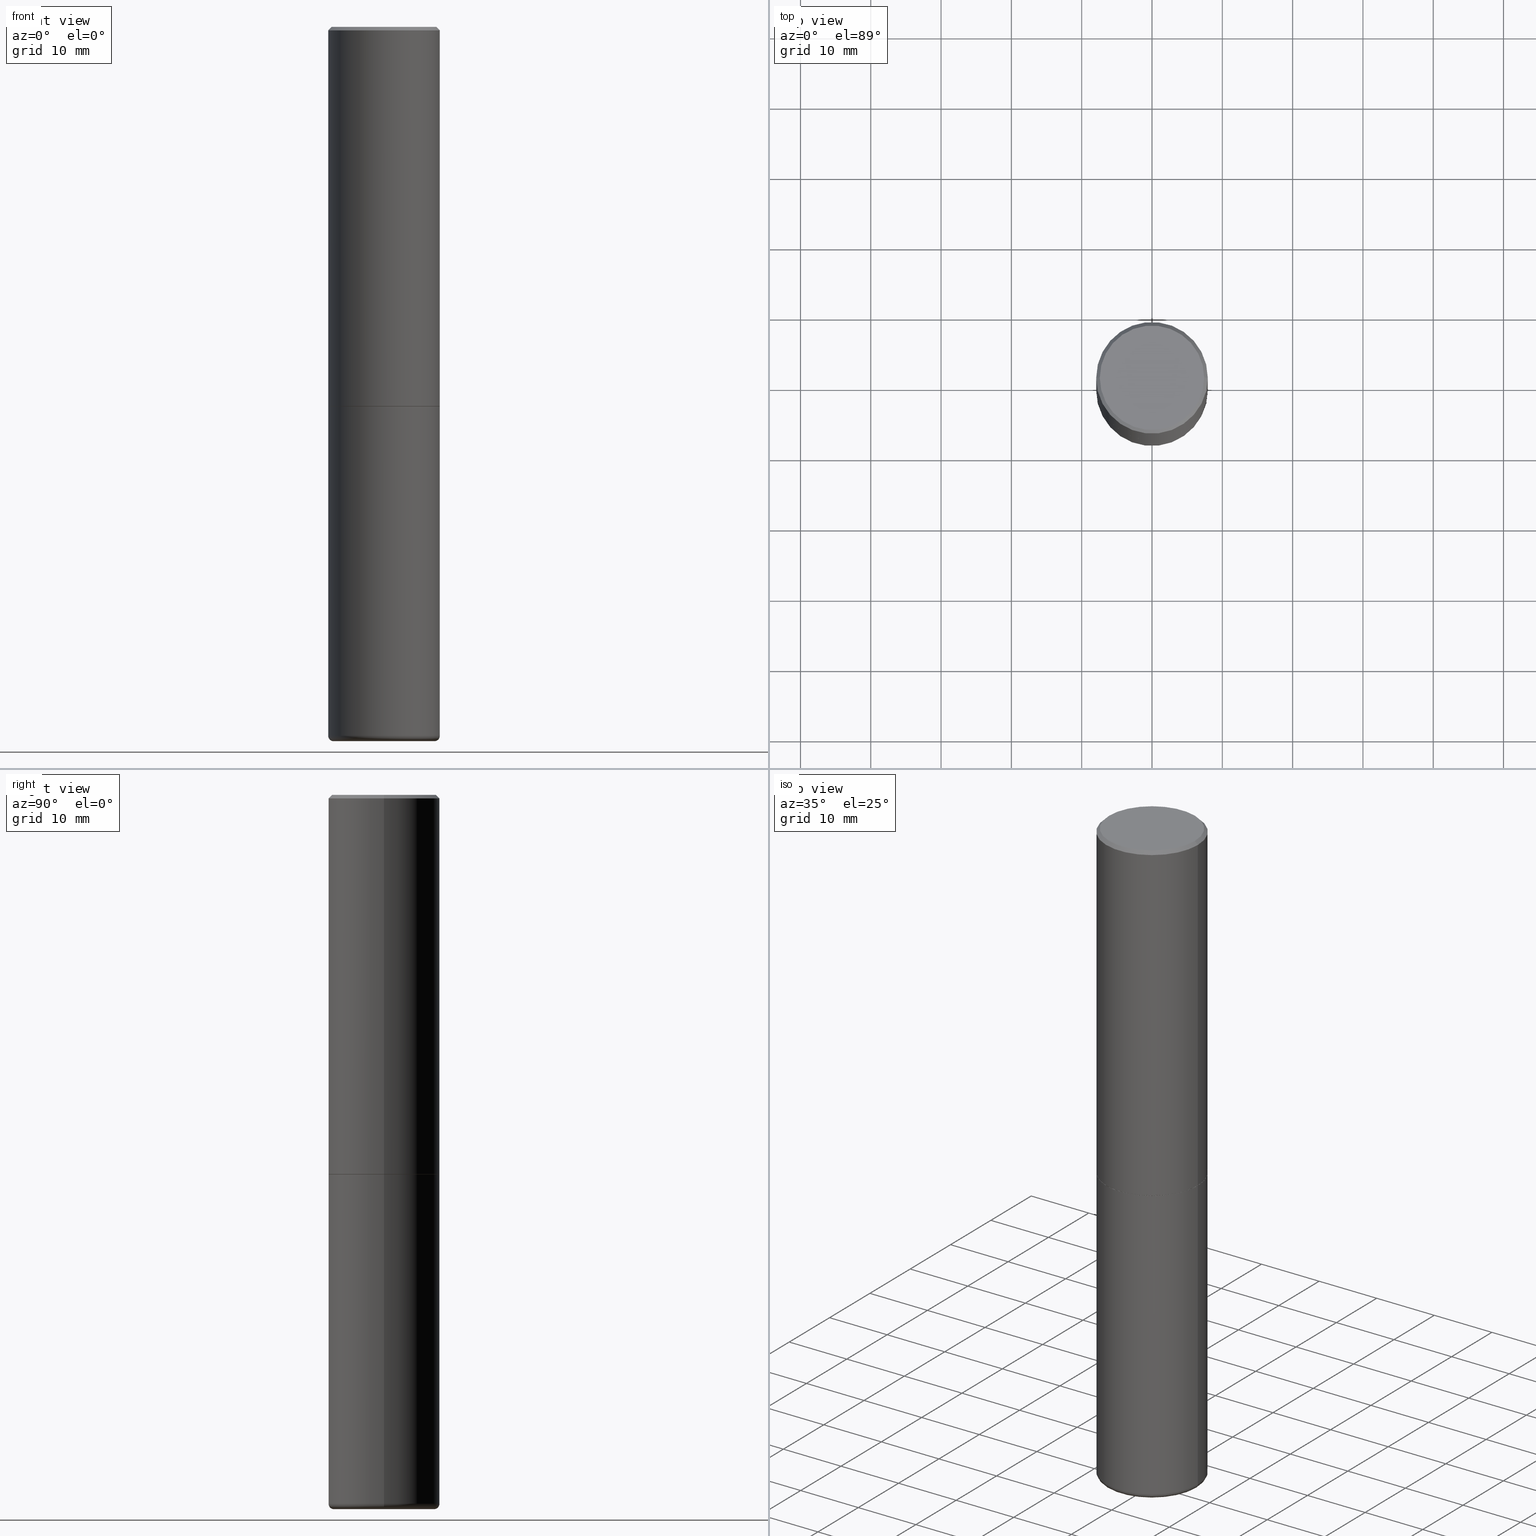
[diagram: canonical four-view strip — front | top / right | iso, engineering-drawing reading convention]
A machine part, canonical four-view strip (front | top / right | iso — engineering-drawing reading convention). The complete STEP part file that produces these views, byte-faithful:
ISO-10303-21;
HEADER;
FILE_DESCRIPTION (( 'STEP AP203' ),
    '1' );
FILE_NAME ('77225.STEP',
    '2024-03-06T16:30:45',
    ( '' ),
    ( '' ),
    'SwSTEP 2.0',
    'SolidWorks 2023',
    '' );
FILE_SCHEMA (( 'CONFIG_CONTROL_DESIGN' ));
ENDSEC;

DATA;
#1 = ADVANCED_FACE ( 'NONE', ( #179 ), #97, .T. ) ;
#2 = CARTESIAN_POINT ( 'NONE',  ( 0.3114999999999999991, -9.594590719140957534E-15, -2.125000000000000000 ) ) ;
#3 = ORIENTED_EDGE ( 'NONE', *, *, #64, .T. ) ;
#4 = CARTESIAN_POINT ( 'NONE',  ( -0.3125000000000000000, -8.419843330874173211E-15, -2.125000000000000000 ) ) ;
#5 = DESIGN_CONTEXT ( 'detailed design', #111, 'design' ) ;
#6 = PERSON_AND_ORGANIZATION ( #236, #222 ) ;
#7 = CIRCLE ( 'NONE', #172, 0.3125000000000002776 ) ;
#8 = CLOSED_SHELL ( 'NONE', ( #262, #408, #234, #365, #390, #155 ) ) ;
#9 = DIRECTION ( 'NONE',  ( -2.445468806185136597E-29, 3.491481338843145583E-15, 1.000000000000000000 ) ) ;
#10 = AXIS2_PLACEMENT_3D ( 'NONE', #297, #288, #253 ) ;
#11 = PERSON_AND_ORGANIZATION ( #236, #222 ) ;
#12 = DIRECTION ( 'NONE',  ( 1.000000000000000000, -6.982962677686266711E-15, 0.000000000000000000 ) ) ;
#13 = APPROVAL_ROLE ( '' ) ;
#14 = CC_DESIGN_PERSON_AND_ORGANIZATION_ASSIGNMENT ( #65, #37, ( #264 ) ) ;
#15 = PERSON_AND_ORGANIZATION ( #236, #222 ) ;
#16 = DIRECTION ( 'NONE',  ( -2.445468806185136597E-29, 3.491481338843145583E-15, 1.000000000000000000 ) ) ;
#17 = DIRECTION ( 'NONE',  ( -2.445468806185136597E-29, 3.491481338843145583E-15, 1.000000000000000000 ) ) ;
#18 = EDGE_CURVE ( 'NONE', #27, #306, #199, .T. ) ;
#19 = CARTESIAN_POINT ( 'NONE',  ( -0.3125000000000001665, 2.220446049250314264E-15, -1.537167215704658792E-29 ) ) ;
#20 = CIRCLE ( 'NONE', #249, 0.2825000000000000289 ) ;
#21 = CC_DESIGN_APPROVAL ( #295, ( #264 ) ) ;
#22 = CIRCLE ( 'NONE', #265, 0.2924999999999998712 ) ;
#23 = EDGE_CURVE ( 'NONE', #284, #352, #68, .T. ) ;
#24 = DIRECTION ( 'NONE',  ( 1.000000000000000000, -6.982962677686264344E-15, 0.000000000000000000 ) ) ;
#25 = ORIENTED_EDGE ( 'NONE', *, *, #64, .F. ) ;
#26 = DIRECTION ( 'NONE',  ( -0.7071067811865232589, 7.493145998870265808E-15, 0.7071067811865715536 ) ) ;
#27 = VERTEX_POINT ( 'NONE', #163 ) ;
#28 = DIRECTION ( 'NONE',  ( -2.445468806185136597E-29, 3.491481338843145583E-15, 1.000000000000000000 ) ) ;
#29 = LOCAL_TIME ( 11, 30, 45.00000000000000000, #149 ) ;
#30 = ORIENTED_EDGE ( 'NONE', *, *, #376, .F. ) ;
#31 = APPROVAL ( #75, 'UNSPECIFIED' ) ;
#32 = ORIENTED_EDGE ( 'NONE', *, *, #207, .T. ) ;
#33 = DIRECTION ( 'NONE',  ( 1.000000000000000000, -6.982962677686269077E-15, 0.000000000000000000 ) ) ;
#34 = CONICAL_SURFACE ( 'NONE', #310, 0.3124999999999999445, 0.7853981633974473908 ) ;
#35 = ORIENTED_EDGE ( 'NONE', *, *, #357, .F. ) ;
#36 = CARTESIAN_POINT ( 'NONE',  ( 0.3125000000000000000, -2.182175836776958347E-15, 1.523805242436230075E-29 ) ) ;
#37 = PERSON_AND_ORGANIZATION_ROLE ( 'creator' ) ;
#38 = CYLINDRICAL_SURFACE ( 'NONE', #361, 0.3125000000000000000 ) ;
#39 = VERTEX_POINT ( 'NONE', #383 ) ;
#40 = FACE_OUTER_BOUND ( 'NONE', #90, .T. ) ;
#41 = AXIS2_PLACEMENT_3D ( 'NONE', #71, #9, #109 ) ;
#42 = APPROVAL_DATE_TIME ( #226, #31 ) ;
#43 = CARTESIAN_POINT ( 'NONE',  ( -6.263108486011318528E-46, 8.942059022282683748E-32, 2.561107494060246767E-17 ) ) ;
#44 = VECTOR ( 'NONE', #136, 39.37007874015748854 ) ;
#45 = AXIS2_PLACEMENT_3D ( 'NONE', #82, #53, #49 ) ;
#46 = ORIENTED_EDGE ( 'NONE', *, *, #415, .T. ) ;
#47 = DIRECTION ( 'NONE',  ( 1.000000000000000000, -6.982962677686266711E-15, 4.876176775795936353E-29 ) ) ;
#48 = PERSON_AND_ORGANIZATION ( #236, #222 ) ;
#49 = DIRECTION ( 'NONE',  ( 1.000000000000000000, -6.982962677686266711E-15, 0.000000000000000000 ) ) ;
#50 = CALENDAR_DATE ( 2024, 6, 3 ) ;
#51 = ORIENTED_EDGE ( 'NONE', *, *, #210, .F. ) ;
#52 = ADVANCED_FACE ( 'NONE', ( #190 ), #214, .F. ) ;
#53 = DIRECTION ( 'NONE',  ( -2.445468806185136597E-29, 3.491481338843145583E-15, 1.000000000000000000 ) ) ;
#54 = CIRCLE ( 'NONE', #281, 0.3125000000000000000 ) ;
#55 = CONICAL_SURFACE ( 'NONE', #266, 0.3114999999999999991, 0.7853981633974141952 ) ;
#56 = CARTESIAN_POINT ( 'NONE',  ( 9.708511160554992872E-29, -1.386118091520728738E-14, -3.970000000000000195 ) ) ;
#57 = EDGE_CURVE ( 'NONE', #346, #397, #76, .T. ) ;
#58 = EDGE_LOOP ( 'NONE', ( #322, #317 ) ) ;
#59 = CARTESIAN_POINT ( 'NONE',  ( 9.781875224740546387E-29, -1.396592535537258233E-14, -4.000000000000000000 ) ) ;
#60 = ORIENTED_EDGE ( 'NONE', *, *, #303, .F. ) ;
#61 = AXIS2_PLACEMENT_3D ( 'NONE', #148, #17, #181 ) ;
#62 = DIRECTION ( 'NONE',  ( 1.000000000000000000, -6.982962677686287221E-15, 0.000000000000000000 ) ) ;
#63 = CARTESIAN_POINT ( 'NONE',  ( 4.890937612370289799E-31, -6.982962677686315028E-17, -0.02000000000000006981 ) ) ;
#64 = EDGE_CURVE ( 'NONE', #276, #132, #125, .T. ) ;
#65 = PERSON_AND_ORGANIZATION ( #236, #222 ) ;
#66 = DIRECTION ( 'NONE',  ( 1.000000000000000000, -6.982962677686269077E-15, 0.000000000000000000 ) ) ;
#67 = APPLICATION_PROTOCOL_DEFINITION ( 'international standard', 'config_control_design', 1994, #84 ) ;
#68 = CIRCLE ( 'NONE', #338, 0.3114999999999999991 ) ;
#69 = DIRECTION ( 'NONE',  ( 2.445468806185136597E-29, -3.491481338843145583E-15, -1.000000000000000000 ) ) ;
#70 = EDGE_LOOP ( 'NONE', ( #100, #105 ) ) ;
#71 = CARTESIAN_POINT ( 'NONE',  ( 9.781875224740546387E-29, -1.396592535537258233E-14, -4.000000000000000000 ) ) ;
#72 = ORIENTED_EDGE ( 'NONE', *, *, #376, .T. ) ;
#73 = EDGE_CURVE ( 'NONE', #380, #39, #353, .T. ) ;
#74 = CYLINDRICAL_SURFACE ( 'NONE', #10, 0.3125000000000001665 ) ;
#75 = APPROVAL_STATUS ( 'not_yet_approved' ) ;
#76 = CIRCLE ( 'NONE', #294, 0.02999999999999991909 ) ;
#77 = DIRECTION ( 'NONE',  ( -2.445468806185136877E-29, 3.491481338843145188E-15, 1.000000000000000000 ) ) ;
#78 = CARTESIAN_POINT ( 'NONE',  ( 5.196621213143415268E-29, -7.419397845041683624E-15, -2.125000000000000000 ) ) ;
#79 = EDGE_CURVE ( 'NONE', #306, #397, #219, .T. ) ;
#80 =( LENGTH_UNIT ( ) NAMED_UNIT ( * ) SI_UNIT ( $, .METRE. ) );
#81 = CARTESIAN_POINT ( 'NONE',  ( 0.3124999999999999445, -1.604335675198424415E-14, -3.970000000000000195 ) ) ;
#82 = CARTESIAN_POINT ( 'NONE',  ( 4.890937612370289799E-31, -6.982962677686315028E-17, -0.02000000000000006981 ) ) ;
#83 = EDGE_CURVE ( 'NONE', #397, #306, #344, .T. ) ;
#84 = APPLICATION_CONTEXT ( 'configuration controlled 3d designs of mechanical parts and assemblies' ) ;
#85 = AXIS2_PLACEMENT_3D ( 'NONE', #43, #168, #171 ) ;
#86 = CARTESIAN_POINT ( 'NONE',  ( -0.3114999999999999991, -5.206057223148971551E-15, -2.125000000000000000 ) ) ;
#87 = AXIS2_PLACEMENT_3D ( 'NONE', #403, #177, #331 ) ;
#88 = ORIENTED_EDGE ( 'NONE', *, *, #183, .T. ) ;
#89 = ADVANCED_FACE ( 'NONE', ( #379 ), #271, .T. ) ;
#90 = EDGE_LOOP ( 'NONE', ( #173, #391, #3, #32 ) ) ;
#91 = ORIENTED_EDGE ( 'NONE', *, *, #83, .T. ) ;
#92 = DIRECTION ( 'NONE',  ( 2.438088387897960049E-29, -3.491481338843145188E-15, -1.000000000000000000 ) ) ;
#93 = VECTOR ( 'NONE', #150, 39.37007874015748143 ) ;
#94 = APPROVAL_PERSON_ORGANIZATION ( #48, #295, #13 ) ;
#95 = AXIS2_PLACEMENT_3D ( 'NONE', #275, #409, #123 ) ;
#96 = CALENDAR_DATE ( 2024, 6, 3 ) ;
#97 = CYLINDRICAL_SURFACE ( 'NONE', #239, 0.3125000000000001665 ) ;
#98 = ORIENTED_EDGE ( 'NONE', *, *, #415, .F. ) ;
#99 = CARTESIAN_POINT ( 'NONE',  ( -0.3125000000000000000, 2.220446049250313081E-15, -1.537167215704658232E-29 ) ) ;
#100 = ORIENTED_EDGE ( 'NONE', *, *, #283, .T. ) ;
#101 = DIRECTION ( 'NONE',  ( -1.000000000000000000, 6.982962677686266711E-15, 0.000000000000000000 ) ) ;
#102 = CC_DESIGN_APPROVAL ( #31, ( #107 ) ) ;
#103 = VECTOR ( 'NONE', #293, 39.37007874015748143 ) ;
#104 = VECTOR ( 'NONE', #77, 39.37007874015748143 ) ;
#105 = ORIENTED_EDGE ( 'NONE', *, *, #210, .T. ) ;
#106 = LINE ( 'NONE', #99, #103 ) ;
#107 = PRODUCT_DEFINITION ( 'UNKNOWN', '', #264, #5 ) ;
#108 = VERTEX_POINT ( 'NONE', #241 ) ;
#109 = DIRECTION ( 'NONE',  ( 1.000000000000000000, -6.982962677686269077E-15, 0.000000000000000000 ) ) ;
#110 = DATE_AND_TIME ( #298, #406 ) ;
#111 = APPLICATION_CONTEXT ( 'configuration controlled 3d designs of mechanical parts and assemblies' ) ;
#112 = ORIENTED_EDGE ( 'NONE', *, *, #18, .F. ) ;
#113 = DIRECTION ( 'NONE',  ( -2.445468806185136597E-29, 3.491481338843145583E-15, 1.000000000000000000 ) ) ;
#114 = UNCERTAINTY_MEASURE_WITH_UNIT (LENGTH_MEASURE( 1.000000000000000082E-05 ), #272, 'distance_accuracy_value', 'NONE');
#115 = SECURITY_CLASSIFICATION_LEVEL ( 'unclassified' ) ;
#116 = AXIS2_PLACEMENT_3D ( 'NONE', #385, #92, #312 ) ;
#117 = FACE_OUTER_BOUND ( 'NONE', #137, .T. ) ;
#118 = DIRECTION ( 'NONE',  ( 1.000000000000000000, -6.982962677686264344E-15, 4.883557194083112340E-29 ) ) ;
#119 = LOCAL_TIME ( 11, 30, 45.00000000000000000, #206 ) ;
#120 = VECTOR ( 'NONE', #314, 39.37007874015748143 ) ;
#121 = DATE_AND_TIME ( #368, #29 ) ;
#122 = EDGE_CURVE ( 'NONE', #352, #380, #161, .T. ) ;
#123 = DIRECTION ( 'NONE',  ( 1.000000000000000000, -6.982962677686269077E-15, 0.000000000000000000 ) ) ;
#124 = ORIENTED_EDGE ( 'NONE', *, *, #405, .F. ) ;
#125 = LINE ( 'NONE', #192, #120 ) ;
#126 = EDGE_LOOP ( 'NONE', ( #91, #215, #124, #287 ) ) ;
#127 = CARTESIAN_POINT ( 'NONE',  ( -0.3124999999999999445, 2.112346210000094654E-15, -0.02000000000000006981 ) ) ;
#128 = ORIENTED_EDGE ( 'NONE', *, *, #247, .T. ) ;
#129 = DIRECTION ( 'NONE',  ( -2.445468806185136597E-29, 3.491481338843145583E-15, 1.000000000000000000 ) ) ;
#130 = AXIS2_PLACEMENT_3D ( 'NONE', #145, #370, #235 ) ;
#131 = AXIS2_PLACEMENT_3D ( 'NONE', #224, #231, #66 ) ;
#132 = VERTEX_POINT ( 'NONE', #127 ) ;
#133 = CARTESIAN_POINT ( 'NONE',  ( 5.196621213143415268E-29, -7.419397845041683624E-15, -2.125000000000000000 ) ) ;
#134 = PERSON_AND_ORGANIZATION ( #236, #222 ) ;
#135 = ORIENTED_EDGE ( 'NONE', *, *, #83, .F. ) ;
#136 = DIRECTION ( 'NONE',  ( 0.7071067811865232589, -2.468850131082003836E-15, 0.7071067811865715536 ) ) ;
#137 = EDGE_LOOP ( 'NONE', ( #200, #386 ) ) ;
#138 = CARTESIAN_POINT ( 'NONE',  ( 0.2924999999999998712, -2.110215457714319142E-15, 2.561107494061698764E-17 ) ) ;
#139 = DIRECTION ( 'NONE',  ( -2.445468806185136597E-29, 3.491481338843145583E-15, 1.000000000000000000 ) ) ;
#140 = CC_DESIGN_PERSON_AND_ORGANIZATION_ASSIGNMENT ( #134, #402, ( #264 ) ) ;
#141 = DIRECTION ( 'NONE',  ( 1.000000000000000000, -6.982962677686266711E-15, 4.876067333457691719E-29 ) ) ;
#142 = COORDINATED_UNIVERSAL_TIME_OFFSET ( 5, 0, .BEHIND. ) ;
#143 = DIRECTION ( 'NONE',  ( -2.445468806185136597E-29, 3.491481338843145583E-15, 1.000000000000000000 ) ) ;
#144 = SHAPE_DEFINITION_REPRESENTATION ( #147, #410 ) ;
#145 = CARTESIAN_POINT ( 'NONE',  ( 9.708511160554992872E-29, -1.386118091520728738E-14, -3.970000000000000195 ) ) ;
#146 = DATE_AND_TIME ( #50, #119 ) ;
#147 = PRODUCT_DEFINITION_SHAPE ( 'NONE', 'NONE',  #107 ) ;
#148 = CARTESIAN_POINT ( 'NONE',  ( 0.000000000000000000, 0.000000000000000000, 0.000000000000000000 ) ) ;
#149 = COORDINATED_UNIVERSAL_TIME_OFFSET ( 5, 0, .BEHIND. ) ;
#150 = DIRECTION ( 'NONE',  ( 0.7071067811865469066, -7.319954787623254468E-15, -0.7071067811865481278 ) ) ;
#151 = DATE_TIME_ROLE ( 'classification_date' ) ;
#152 = DIRECTION ( 'NONE',  ( -2.445468806185136597E-29, 3.491481338843145583E-15, 1.000000000000000000 ) ) ;
#153 = ORIENTED_EDGE ( 'NONE', *, *, #73, .F. ) ;
#154 = DIRECTION ( 'NONE',  ( 1.000000000000000000, -6.982962677686269077E-15, 0.000000000000000000 ) ) ;
#155 = ADVANCED_FACE ( 'NONE', ( #156 ), #245, .T. ) ;
#156 = FACE_OUTER_BOUND ( 'NONE', #58, .T. ) ;
#157 = CIRCLE ( 'NONE', #85, 0.2924999999999998712 ) ;
#158 = ORIENTED_EDGE ( 'NONE', *, *, #357, .T. ) ;
#159 = PRODUCT_RELATED_PRODUCT_CATEGORY ( 'detail', '', ( #278 ) ) ;
#160 = AXIS2_PLACEMENT_3D ( 'NONE', #56, #341, #24 ) ;
#161 = LINE ( 'NONE', #86, #327 ) ;
#162 = ORIENTED_EDGE ( 'NONE', *, *, #216, .T. ) ;
#163 = CARTESIAN_POINT ( 'NONE',  ( -0.2825000000000000289, -1.179968849640363848E-14, -4.000000000000000000 ) ) ;
#164 = CC_DESIGN_PERSON_AND_ORGANIZATION_ASSIGNMENT ( #261, #356, ( #278 ) ) ;
#165 = ORIENTED_EDGE ( 'NONE', *, *, #193, .F. ) ;
#166 = FACE_OUTER_BOUND ( 'NONE', #394, .T. ) ;
#167 = CIRCLE ( 'NONE', #334, 0.3124999999999999445 ) ;
#168 = DIRECTION ( 'NONE',  ( -2.445468806185136597E-29, 3.491481338843145583E-15, 1.000000000000000000 ) ) ;
#169 = EDGE_LOOP ( 'NONE', ( #51, #254, #158, #25 ) ) ;
#170 = CARTESIAN_POINT ( 'NONE',  ( 5.196621213143415268E-29, -7.419397845041683624E-15, -2.125000000000000000 ) ) ;
#171 = DIRECTION ( 'NONE',  ( 1.000000000000000000, -6.982962677686266711E-15, 4.876067333457691719E-29 ) ) ;
#172 = AXIS2_PLACEMENT_3D ( 'NONE', #332, #152, #267 ) ;
#173 = ORIENTED_EDGE ( 'NONE', *, *, #323, .F. ) ;
#174 = CARTESIAN_POINT ( 'NONE',  ( -0.2924999999999998712, 2.077431396611663794E-15, 2.561107494058806172E-17 ) ) ;
#175 = APPROVAL_STATUS ( 'not_yet_approved' ) ;
#176 = DIRECTION ( 'NONE',  ( 1.000000000000000000, -6.982962677686269077E-15, 0.000000000000000000 ) ) ;
#177 = DIRECTION ( 'NONE',  ( -2.438088387897960049E-29, 3.491481338843145188E-15, 1.000000000000000000 ) ) ;
#178 = MANIFOLD_SOLID_BREP ( 'Body-Move/Copy2[2]', #242 ) ;
#179 = FACE_OUTER_BOUND ( 'NONE', #411, .T. ) ;
#180 = AXIS2_PLACEMENT_3D ( 'NONE', #307, #28, #33 ) ;
#181 = DIRECTION ( 'NONE',  ( 1.000000000000000000, -6.982962677686266711E-15, 4.876176775795936353E-29 ) ) ;
#182 = CARTESIAN_POINT ( 'NONE',  ( 0.2825000000000000289, -1.593861231181895394E-14, -4.000000000000000000 ) ) ;
#183 = EDGE_CURVE ( 'NONE', #352, #284, #392, .T. ) ;
#184 = PERSON_AND_ORGANIZATION ( #236, #222 ) ;
#185 = DIRECTION ( 'NONE',  ( -2.445468806185136597E-29, 3.491481338843145583E-15, 1.000000000000000000 ) ) ;
#186 = AXIS2_PLACEMENT_3D ( 'NONE', #205, #375, #259 ) ;
#187 = AXIS2_PLACEMENT_3D ( 'NONE', #248, #412, #414 ) ;
#188 = ADVANCED_FACE ( 'NONE', ( #40 ), #305, .T. ) ;
#189 = VECTOR ( 'NONE', #263, 39.37007874015748143 ) ;
#190 = FACE_OUTER_BOUND ( 'NONE', #70, .T. ) ;
#191 = VERTEX_POINT ( 'NONE', #138 ) ;
#192 = CARTESIAN_POINT ( 'NONE',  ( -0.3124999999999999445, 2.112346210000094654E-15, -0.02000000000000006981 ) ) ;
#193 = EDGE_CURVE ( 'NONE', #306, #313, #106, .T. ) ;
#194 = CIRCLE ( 'NONE', #41, 0.2825000000000000289 ) ;
#195 = EDGE_LOOP ( 'NONE', ( #165, #340, #128, #60 ) ) ;
#196 = CARTESIAN_POINT ( 'NONE',  ( 0.3114999999999999991, -9.594590719140957534E-15, -2.125000000000000000 ) ) ;
#197 = EDGE_LOOP ( 'NONE', ( #112, #359, #309, #290 ) ) ;
#198 = CARTESIAN_POINT ( 'NONE',  ( 5.196621213143415268E-29, -7.419397845041685201E-15, -2.125000000000000000 ) ) ;
#199 = CIRCLE ( 'NONE', #187, 0.02999999999999991909 ) ;
#200 = ORIENTED_EDGE ( 'NONE', *, *, #23, .F. ) ;
#201 = DIRECTION ( 'NONE',  ( 1.000000000000000000, -6.982962677686269077E-15, 0.000000000000000000 ) ) ;
#202 = CARTESIAN_POINT ( 'NONE',  ( 0.000000000000000000, 0.000000000000000000, 0.000000000000000000 ) ) ;
#203 = DIRECTION ( 'NONE',  ( -2.445468806185136597E-29, 3.491481338843145583E-15, 1.000000000000000000 ) ) ;
#204 = AXIS2_PLACEMENT_3D ( 'NONE', #286, #220, #374 ) ;
#205 = CARTESIAN_POINT ( 'NONE',  ( 0.000000000000000000, 0.000000000000000000, 0.000000000000000000 ) ) ;
#206 = COORDINATED_UNIVERSAL_TIME_OFFSET ( 5, 0, .BEHIND. ) ;
#207 = EDGE_CURVE ( 'NONE', #132, #108, #167, .T. ) ;
#208 = CIRCLE ( 'NONE', #217, 0.3125000000000000000 ) ;
#209 = CYLINDRICAL_SURFACE ( 'NONE', #61, 0.3125000000000000000 ) ;
#210 = EDGE_CURVE ( 'NONE', #191, #276, #22, .T. ) ;
#211 = CC_DESIGN_APPROVAL ( #213, ( #326 ) ) ;
#212 = ORIENTED_EDGE ( 'NONE', *, *, #73, .T. ) ;
#213 = APPROVAL ( #399, 'UNSPECIFIED' ) ;
#214 = PLANE ( 'NONE',  #116 ) ;
#215 = ORIENTED_EDGE ( 'NONE', *, *, #193, .T. ) ;
#216 = EDGE_CURVE ( 'NONE', #39, #108, #255, .T. ) ;
#217 = AXIS2_PLACEMENT_3D ( 'NONE', #133, #203, #417 ) ;
#218 = TOROIDAL_SURFACE ( 'NONE', #243, 0.2825000000000000289, 0.02999999999999993644 ) ;
#219 = CIRCLE ( 'NONE', #204, 0.3124999999999999445 ) ;
#220 = DIRECTION ( 'NONE',  ( -2.445468806185136597E-29, 3.491481338843145583E-15, 1.000000000000000000 ) ) ;
#221 = DATE_AND_TIME ( #96, #364 ) ;
#222 = ORGANIZATION ( 'UNSPECIFIED', 'UNSPECIFIED', '' ) ;
#223 = EDGE_LOOP ( 'NONE', ( #382, #233, #135, #315 ) ) ;
#224 = CARTESIAN_POINT ( 'NONE',  ( 5.196621213143415268E-29, -7.419397845041685201E-15, -2.125000000000000000 ) ) ;
#225 = ADVANCED_FACE ( 'NONE', ( #393 ), #55, .T. ) ;
#226 = DATE_AND_TIME ( #396, #354 ) ;
#227 = EDGE_LOOP ( 'NONE', ( #373, #388, #30, #343 ) ) ;
#228 = DIRECTION ( 'NONE',  ( -1.000000000000000000, 6.982962677686265922E-15, -4.876176775795935793E-29 ) ) ;
#229 = ORIENTED_EDGE ( 'NONE', *, *, #308, .T. ) ;
#230 = DIRECTION ( 'NONE',  ( 2.438088387897960049E-29, -3.491481338843145188E-15, -1.000000000000000000 ) ) ;
#231 = DIRECTION ( 'NONE',  ( -2.445468806185136597E-29, 3.491481338843145583E-15, 1.000000000000000000 ) ) ;
#232 = DATE_TIME_ROLE ( 'creation_date' ) ;
#233 = ORIENTED_EDGE ( 'NONE', *, *, #18, .T. ) ;
#234 = ADVANCED_FACE ( 'NONE', ( #325 ), #398, .F. ) ;
#235 = DIRECTION ( 'NONE',  ( 1.000000000000000000, -6.982962677686264344E-15, 4.883557194083112340E-29 ) ) ;
#236 = PERSON ( 'UNSPECIFIED', 'UNSPECIFIED', 'UNSPECIFIED', ('UNSPECIFIED'), ('UNSPECIFIED'), ('UNSPECIFIED') ) ;
#237 = VECTOR ( 'NONE', #360, 39.37007874015748143 ) ;
#238 = CARTESIAN_POINT ( 'NONE',  ( 9.781875224740546387E-29, -1.396592535537258233E-14, -4.000000000000000000 ) ) ;
#239 = AXIS2_PLACEMENT_3D ( 'NONE', #349, #256, #285 ) ;
#240 = LINE ( 'NONE', #367, #93 ) ;
#241 = CARTESIAN_POINT ( 'NONE',  ( 0.3124999999999999445, -2.213735251080466517E-15, -0.02000000000000006981 ) ) ;
#242 = CLOSED_SHELL ( 'NONE', ( #89, #299, #274, #188, #1, #225, #400, #52 ) ) ;
#243 = AXIS2_PLACEMENT_3D ( 'NONE', #407, #143, #118 ) ;
#244 = ORIENTED_EDGE ( 'NONE', *, *, #303, .T. ) ;
#245 = PLANE ( 'NONE',  #280 ) ;
#246 = VERTEX_POINT ( 'NONE', #347 ) ;
#247 = EDGE_CURVE ( 'NONE', #397, #246, #350, .T. ) ;
#248 = CARTESIAN_POINT ( 'NONE',  ( -0.2825000000000000289, -1.185389768668500455E-14, -3.970000000000000195 ) ) ;
#249 = AXIS2_PLACEMENT_3D ( 'NONE', #238, #16, #176 ) ;
#250 = APPROVAL_PERSON_ORGANIZATION ( #184, #213, #333 ) ;
#251 = ORIENTED_EDGE ( 'NONE', *, *, #405, .T. ) ;
#252 = EDGE_CURVE ( 'NONE', #346, #27, #194, .T. ) ;
#253 = DIRECTION ( 'NONE',  ( 1.000000000000000000, -6.982962677686266711E-15, 4.876176775795935232E-29 ) ) ;
#254 = ORIENTED_EDGE ( 'NONE', *, *, #323, .T. ) ;
#255 = LINE ( 'NONE', #355, #189 ) ;
#256 = DIRECTION ( 'NONE',  ( -2.445468806185136597E-29, 3.491481338843145583E-15, 1.000000000000000000 ) ) ;
#257 = ORIENTED_EDGE ( 'NONE', *, *, #207, .F. ) ;
#258 = CARTESIAN_POINT ( 'NONE',  ( 4.890937612370289799E-31, -6.982962677686315028E-17, -0.02000000000000006981 ) ) ;
#259 = DIRECTION ( 'NONE',  ( 1.000000000000000000, 0.000000000000000000, 0.000000000000000000 ) ) ;
#260 = CARTESIAN_POINT ( 'NONE',  ( -6.263108486011318528E-46, 8.942059022282683748E-32, 2.561107494060246767E-17 ) ) ;
#261 = PERSON_AND_ORGANIZATION ( #236, #222 ) ;
#262 = ADVANCED_FACE ( 'NONE', ( #318 ), #38, .T. ) ;
#263 = DIRECTION ( 'NONE',  ( -2.445468806185136877E-29, 3.491481338843145188E-15, 1.000000000000000000 ) ) ;
#264 = PRODUCT_DEFINITION_FORMATION_WITH_SPECIFIED_SOURCE ( 'ANY', '', #278, .NOT_KNOWN. ) ;
#265 = AXIS2_PLACEMENT_3D ( 'NONE', #260, #389, #141 ) ;
#266 = AXIS2_PLACEMENT_3D ( 'NONE', #198, #113, #201 ) ;
#267 = DIRECTION ( 'NONE',  ( 1.000000000000000000, -6.982962677686269077E-15, 0.000000000000000000 ) ) ;
#268 = CC_DESIGN_PERSON_AND_ORGANIZATION_ASSIGNMENT ( #15, #336, ( #326 ) ) ;
#269 = APPROVAL_DATE_TIME ( #146, #213 ) ;
#270 = FACE_OUTER_BOUND ( 'NONE', #223, .T. ) ;
#271 = CONICAL_SURFACE ( 'NONE', #95, 0.3114999999999999991, 0.7853981633974141952 ) ;
#272 =( CONVERSION_BASED_UNIT ( 'INCH', #401 ) LENGTH_UNIT ( ) NAMED_UNIT ( #339 ) );
#273 = AXIS2_PLACEMENT_3D ( 'NONE', #170, #230, #228 ) ;
#274 = ADVANCED_FACE ( 'NONE', ( #395 ), #34, .T. ) ;
#275 = CARTESIAN_POINT ( 'NONE',  ( 5.196621213143415268E-29, -7.419397845041685201E-15, -2.125000000000000000 ) ) ;
#276 = VERTEX_POINT ( 'NONE', #174 ) ;
#277 = DIRECTION ( 'NONE',  ( -6.982962677686266711E-15, -1.000000000000000000, 3.491481338843145583E-15 ) ) ;
#278 = PRODUCT ( '77225', '77225', '', ( #321 ) ) ;
#279 = CC_DESIGN_SECURITY_CLASSIFICATION ( #326, ( #264 ) ) ;
#280 = AXIS2_PLACEMENT_3D ( 'NONE', #59, #381, #320 ) ;
#281 = AXIS2_PLACEMENT_3D ( 'NONE', #78, #185, #300 ) ;
#282 = CARTESIAN_POINT ( 'NONE',  ( 0.2825000000000000289, -1.583386787165366057E-14, -3.970000000000000195 ) ) ;
#283 = EDGE_CURVE ( 'NONE', #276, #191, #157, .T. ) ;
#284 = VERTEX_POINT ( 'NONE', #196 ) ;
#285 = DIRECTION ( 'NONE',  ( 1.000000000000000000, -6.982962677686266711E-15, 4.876176775795935232E-29 ) ) ;
#286 = CARTESIAN_POINT ( 'NONE',  ( 9.708511160554992872E-29, -1.386118091520728738E-14, -3.970000000000000195 ) ) ;
#287 = ORIENTED_EDGE ( 'NONE', *, *, #247, .F. ) ;
#288 = DIRECTION ( 'NONE',  ( -2.445468806185136597E-29, 3.491481338843145583E-15, 1.000000000000000000 ) ) ;
#289 = LINE ( 'NONE', #2, #44 ) ;
#290 = ORIENTED_EDGE ( 'NONE', *, *, #79, .F. ) ;
#291 = DIRECTION ( 'NONE',  ( -2.445468806185136597E-29, 3.491481338843145583E-15, 1.000000000000000000 ) ) ;
#292 = COORDINATED_UNIVERSAL_TIME_OFFSET ( 5, 0, .BEHIND. ) ;
#293 = DIRECTION ( 'NONE',  ( -2.445468806185136877E-29, 3.491481338843145188E-15, 1.000000000000000000 ) ) ;
#294 = AXIS2_PLACEMENT_3D ( 'NONE', #282, #277, #62 ) ;
#295 = APPROVAL ( #175, 'UNSPECIFIED' ) ;
#296 = APPLICATION_PROTOCOL_DEFINITION ( 'international standard', 'config_control_design', 1994, #111 ) ;
#297 = CARTESIAN_POINT ( 'NONE',  ( 0.000000000000000000, 0.000000000000000000, 0.000000000000000000 ) ) ;
#298 = CALENDAR_DATE ( 2024, 6, 3 ) ;
#299 = ADVANCED_FACE ( 'NONE', ( #166 ), #74, .T. ) ;
#300 = DIRECTION ( 'NONE',  ( 1.000000000000000000, -6.982962677686269077E-15, 0.000000000000000000 ) ) ;
#301 = FACE_OUTER_BOUND ( 'NONE', #195, .T. ) ;
#302 =( NAMED_UNIT ( * ) PLANE_ANGLE_UNIT ( ) SI_UNIT ( $, .RADIAN. ) );
#303 = EDGE_CURVE ( 'NONE', #313, #246, #208, .T. ) ;
#304 = CIRCLE ( 'NONE', #45, 0.3124999999999999445 ) ;
#305 = CONICAL_SURFACE ( 'NONE', #366, 0.3124999999999999445, 0.7853981633974473908 ) ;
#306 = VERTEX_POINT ( 'NONE', #387 ) ;
#307 = CARTESIAN_POINT ( 'NONE',  ( 5.194175744337229665E-29, -7.415906363702840616E-15, -2.123999999999999666 ) ) ;
#308 = EDGE_CURVE ( 'NONE', #284, #39, #289, .T. ) ;
#309 = ORIENTED_EDGE ( 'NONE', *, *, #57, .T. ) ;
#310 = AXIS2_PLACEMENT_3D ( 'NONE', #63, #358, #324 ) ;
#311 = MANIFOLD_SOLID_BREP ( 'Body-Move/Copy2[1]', #8 ) ;
#312 = DIRECTION ( 'NONE',  ( -1.000000000000000000, 6.982962677686265922E-15, -4.876176775795935793E-29 ) ) ;
#313 = VERTEX_POINT ( 'NONE', #4 ) ;
#314 = DIRECTION ( 'NONE',  ( -0.7071067811865469066, 2.468850131082250355E-15, -0.7071067811865481278 ) ) ;
#315 = ORIENTED_EDGE ( 'NONE', *, *, #57, .F. ) ;
#316 = CARTESIAN_POINT ( 'NONE',  ( 4.890937612370289799E-31, -6.982962677686315028E-17, -0.02000000000000006981 ) ) ;
#317 = ORIENTED_EDGE ( 'NONE', *, *, #330, .F. ) ;
#318 = FACE_OUTER_BOUND ( 'NONE', #126, .T. ) ;
#319 = EDGE_LOOP ( 'NONE', ( #362, #88, #229, #153 ) ) ;
#320 = DIRECTION ( 'NONE',  ( -1.000000000000000000, 6.982962677686265922E-15, -4.876176775795935793E-29 ) ) ;
#321 = MECHANICAL_CONTEXT ( 'NONE', #84, 'mechanical' ) ;
#322 = ORIENTED_EDGE ( 'NONE', *, *, #252, .F. ) ;
#323 = EDGE_CURVE ( 'NONE', #191, #108, #240, .T. ) ;
#324 = DIRECTION ( 'NONE',  ( -1.000000000000000000, 6.982962677686266711E-15, 0.000000000000000000 ) ) ;
#325 = FACE_OUTER_BOUND ( 'NONE', #413, .T. ) ;
#326 = SECURITY_CLASSIFICATION ( '', '', #115 ) ;
#327 = VECTOR ( 'NONE', #26, 39.37007874015748854 ) ;
#328 = APPROVAL_ROLE ( '' ) ;
#329 =( NAMED_UNIT ( * ) SI_UNIT ( $, .STERADIAN. ) SOLID_ANGLE_UNIT ( ) );
#330 = EDGE_CURVE ( 'NONE', #27, #346, #20, .T. ) ;
#331 = DIRECTION ( 'NONE',  ( 1.000000000000000000, -6.982962677686265922E-15, 4.876176775795935793E-29 ) ) ;
#332 = CARTESIAN_POINT ( 'NONE',  ( 5.194175744337229665E-29, -7.415906363702840616E-15, -2.123999999999999666 ) ) ;
#333 = APPROVAL_ROLE ( '' ) ;
#334 = AXIS2_PLACEMENT_3D ( 'NONE', #258, #139, #12 ) ;
#335 =( GEOMETRIC_REPRESENTATION_CONTEXT ( 3 ) GLOBAL_UNCERTAINTY_ASSIGNED_CONTEXT ( ( #114 ) ) GLOBAL_UNIT_ASSIGNED_CONTEXT ( ( #272, #302, #329 ) ) REPRESENTATION_CONTEXT ( 'NONE', 'WORKASPACE' ) );
#336 = PERSON_AND_ORGANIZATION_ROLE ( 'classification_officer' ) ;
#337 = CARTESIAN_POINT ( 'NONE',  ( -0.3125000000000002776, -1.522421945989534932E-15, -2.123999999999999666 ) ) ;
#338 = AXIS2_PLACEMENT_3D ( 'NONE', #345, #129, #154 ) ;
#339 = DIMENSIONAL_EXPONENTS ( 1.000000000000000000, 0.000000000000000000, 0.000000000000000000, 0.000000000000000000, 0.000000000000000000, 0.000000000000000000, 0.000000000000000000 ) ;
#340 = ORIENTED_EDGE ( 'NONE', *, *, #79, .T. ) ;
#341 = DIRECTION ( 'NONE',  ( -2.445468806185136597E-29, 3.491481338843145583E-15, 1.000000000000000000 ) ) ;
#342 = CC_DESIGN_DATE_AND_TIME_ASSIGNMENT ( #121, #151, ( #326 ) ) ;
#343 = ORIENTED_EDGE ( 'NONE', *, *, #308, .F. ) ;
#344 = CIRCLE ( 'NONE', #160, 0.3124999999999999445 ) ;
#345 = CARTESIAN_POINT ( 'NONE',  ( 5.196621213143415268E-29, -7.419397845041685201E-15, -2.125000000000000000 ) ) ;
#346 = VERTEX_POINT ( 'NONE', #182 ) ;
#347 = CARTESIAN_POINT ( 'NONE',  ( 0.3125000000000000000, -9.601573681818641971E-15, -2.125000000000000000 ) ) ;
#348 = APPROVAL_DATE_TIME ( #221, #295 ) ;
#349 = CARTESIAN_POINT ( 'NONE',  ( 0.000000000000000000, 0.000000000000000000, 0.000000000000000000 ) ) ;
#350 = LINE ( 'NONE', #36, #237 ) ;
#351 = COORDINATED_UNIVERSAL_TIME_OFFSET ( 5, 0, .BEHIND. ) ;
#352 = VERTEX_POINT ( 'NONE', #372 ) ;
#353 = CIRCLE ( 'NONE', #180, 0.3125000000000002776 ) ;
#354 = LOCAL_TIME ( 11, 30, 45.00000000000000000, #292 ) ;
#355 = CARTESIAN_POINT ( 'NONE',  ( 0.3125000000000001665, -2.182175836776959530E-15, 1.523805242436230636E-29 ) ) ;
#356 = PERSON_AND_ORGANIZATION_ROLE ( 'design_owner' ) ;
#357 = EDGE_CURVE ( 'NONE', #108, #132, #304, .T. ) ;
#358 = DIRECTION ( 'NONE',  ( 2.445468806185136597E-29, -3.491481338843145583E-15, -1.000000000000000000 ) ) ;
#359 = ORIENTED_EDGE ( 'NONE', *, *, #330, .T. ) ;
#360 = DIRECTION ( 'NONE',  ( -2.445468806185136877E-29, 3.491481338843145188E-15, 1.000000000000000000 ) ) ;
#361 = AXIS2_PLACEMENT_3D ( 'NONE', #202, #291, #47 ) ;
#362 = ORIENTED_EDGE ( 'NONE', *, *, #122, .F. ) ;
#363 = LINE ( 'NONE', #19, #104 ) ;
#364 = LOCAL_TIME ( 11, 30, 45.00000000000000000, #142 ) ;
#365 = ADVANCED_FACE ( 'NONE', ( #301 ), #209, .T. ) ;
#366 = AXIS2_PLACEMENT_3D ( 'NONE', #316, #69, #101 ) ;
#367 = CARTESIAN_POINT ( 'NONE',  ( 0.3124999999999999445, -2.213735251080466517E-15, -0.02000000000000006981 ) ) ;
#368 = CALENDAR_DATE ( 2024, 6, 3 ) ;
#369 = PLANE ( 'NONE',  #87 ) ;
#370 = DIRECTION ( 'NONE',  ( -2.445468806185136597E-29, 3.491481338843145583E-15, 1.000000000000000000 ) ) ;
#371 = CC_DESIGN_PERSON_AND_ORGANIZATION_ASSIGNMENT ( #6, #418, ( #107 ) ) ;
#372 = CARTESIAN_POINT ( 'NONE',  ( -0.3114999999999999991, -5.200758768800747571E-15, -2.125000000000000000 ) ) ;
#373 = ORIENTED_EDGE ( 'NONE', *, *, #23, .T. ) ;
#374 = DIRECTION ( 'NONE',  ( 1.000000000000000000, -6.982962677686264344E-15, 0.000000000000000000 ) ) ;
#375 = DIRECTION ( 'NONE',  ( 0.000000000000000000, 0.000000000000000000, 1.000000000000000000 ) ) ;
#376 = EDGE_CURVE ( 'NONE', #39, #380, #7, .T. ) ;
#377 = APPROVAL_PERSON_ORGANIZATION ( #11, #31, #328 ) ;
#378 = TOROIDAL_SURFACE ( 'NONE', #130, 0.2825000000000000289, 0.02999999999999993644 ) ;
#379 = FACE_OUTER_BOUND ( 'NONE', #227, .T. ) ;
#380 = VERTEX_POINT ( 'NONE', #337 ) ;
#381 = DIRECTION ( 'NONE',  ( 2.438088387897960049E-29, -3.491481338843145188E-15, -1.000000000000000000 ) ) ;
#382 = ORIENTED_EDGE ( 'NONE', *, *, #252, .T. ) ;
#383 = CARTESIAN_POINT ( 'NONE',  ( 0.3125000000000002776, -9.598082200479802119E-15, -2.123999999999999666 ) ) ;
#384 = CC_DESIGN_DATE_AND_TIME_ASSIGNMENT ( #110, #232, ( #107 ) ) ;
#385 = CARTESIAN_POINT ( 'NONE',  ( 2.042516583223232145E-15, 0.2924999999999998712, -1.008452754141318342E-15 ) ) ;
#386 = ORIENTED_EDGE ( 'NONE', *, *, #183, .F. ) ;
#387 = CARTESIAN_POINT ( 'NONE',  ( -0.3124999999999999445, -1.164073486595697430E-14, -3.970000000000000195 ) ) ;
#388 = ORIENTED_EDGE ( 'NONE', *, *, #122, .T. ) ;
#389 = DIRECTION ( 'NONE',  ( -2.445468806185136597E-29, 3.491481338843145583E-15, 1.000000000000000000 ) ) ;
#390 = ADVANCED_FACE ( 'NONE', ( #404 ), #218, .T. ) ;
#391 = ORIENTED_EDGE ( 'NONE', *, *, #283, .F. ) ;
#392 = CIRCLE ( 'NONE', #131, 0.3114999999999999991 ) ;
#393 = FACE_OUTER_BOUND ( 'NONE', #319, .T. ) ;
#394 = EDGE_LOOP ( 'NONE', ( #72, #46, #35, #416 ) ) ;
#395 = FACE_OUTER_BOUND ( 'NONE', #169, .T. ) ;
#396 = CALENDAR_DATE ( 2024, 6, 3 ) ;
#397 = VERTEX_POINT ( 'NONE', #81 ) ;
#398 = PLANE ( 'NONE',  #273 ) ;
#399 = APPROVAL_STATUS ( 'not_yet_approved' ) ;
#400 = ADVANCED_FACE ( 'NONE', ( #117 ), #369, .F. ) ;
#401 = LENGTH_MEASURE_WITH_UNIT ( LENGTH_MEASURE( 0.02539999999999999897 ), #80 );
#402 = PERSON_AND_ORGANIZATION_ROLE ( 'design_supplier' ) ;
#403 = CARTESIAN_POINT ( 'NONE',  ( 5.196621213143415268E-29, -7.419397845041683624E-15, -2.125000000000000000 ) ) ;
#404 = FACE_OUTER_BOUND ( 'NONE', #197, .T. ) ;
#405 = EDGE_CURVE ( 'NONE', #246, #313, #54, .T. ) ;
#406 = LOCAL_TIME ( 11, 30, 45.00000000000000000, #351 ) ;
#407 = CARTESIAN_POINT ( 'NONE',  ( 9.708511160554992872E-29, -1.386118091520728738E-14, -3.970000000000000195 ) ) ;
#408 = ADVANCED_FACE ( 'NONE', ( #270 ), #378, .T. ) ;
#409 = DIRECTION ( 'NONE',  ( -2.445468806185136597E-29, 3.491481338843145583E-15, 1.000000000000000000 ) ) ;
#410 = ADVANCED_BREP_SHAPE_REPRESENTATION ( '77225', ( #311, #178, #186 ), #335 ) ;
#411 = EDGE_LOOP ( 'NONE', ( #98, #212, #162, #257 ) ) ;
#412 = DIRECTION ( 'NONE',  ( 7.105427357601001859E-15, 1.000000000000000000, -3.491481338843145583E-15 ) ) ;
#413 = EDGE_LOOP ( 'NONE', ( #251, #244 ) ) ;
#414 = DIRECTION ( 'NONE',  ( -1.000000000000000000, 7.105427357601009747E-15, 0.000000000000000000 ) ) ;
#415 = EDGE_CURVE ( 'NONE', #380, #132, #363, .T. ) ;
#416 = ORIENTED_EDGE ( 'NONE', *, *, #216, .F. ) ;
#417 = DIRECTION ( 'NONE',  ( 1.000000000000000000, -6.982962677686269077E-15, 0.000000000000000000 ) ) ;
#418 = PERSON_AND_ORGANIZATION_ROLE ( 'creator' ) ;
ENDSEC;
END-ISO-10303-21;
